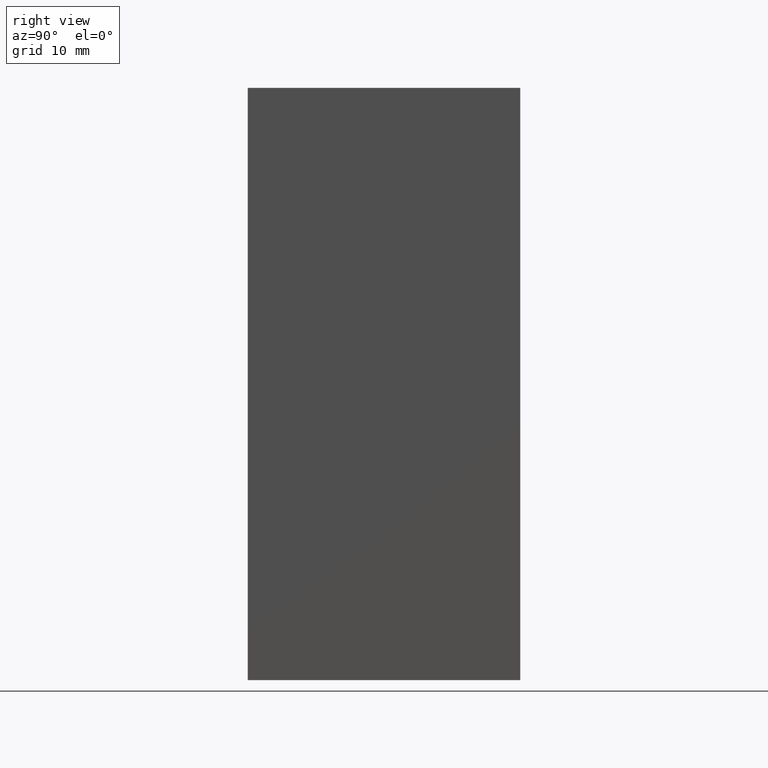
[diagram: clean part render]
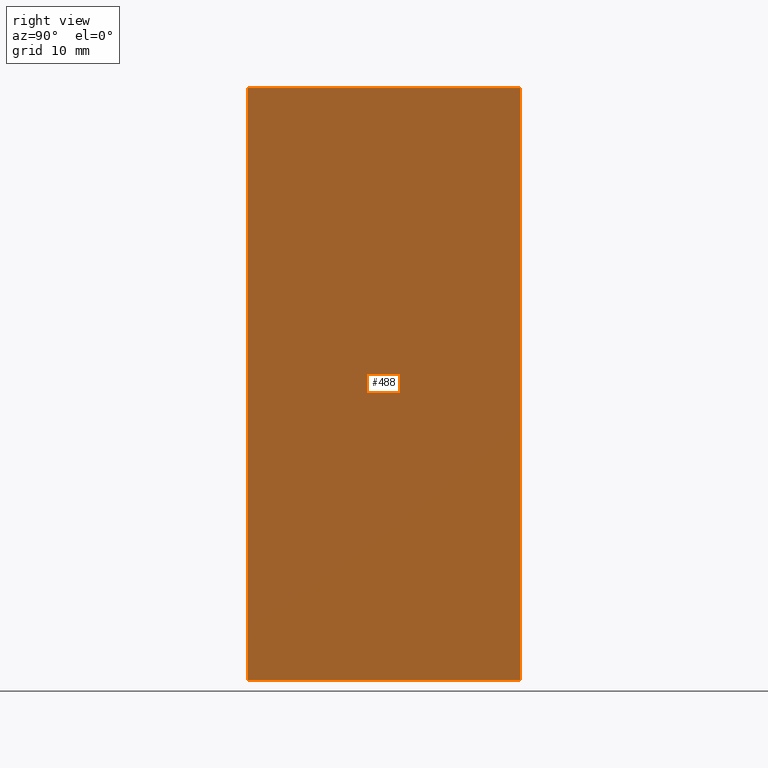
[diagram: same view with one face highlighted and labeled with its STEP entity id]
A machine part, right view. The second image highlights one B-rep face of the part: STEP entity #488.
In plain terms, the highlighted planar face has unit normal (1, 0, 0).
Its self-contained STEP definition (entity closure, byte-faithful):
#28=PLANE('',#551);
#56=FACE_OUTER_BOUND('',#88,.T.);
#88=EDGE_LOOP('',(#387,#388,#389,#390));
#116=LINE('',#750,#170);
#131=LINE('',#780,#185);
#132=LINE('',#782,#186);
#133=LINE('',#783,#187);
#170=VECTOR('',#623,10.);
#185=VECTOR('',#640,10.);
#186=VECTOR('',#641,10.);
#187=VECTOR('',#642,10.);
#242=VERTEX_POINT('',#747);
#243=VERTEX_POINT('',#749);
#257=VERTEX_POINT('',#779);
#258=VERTEX_POINT('',#781);
#292=EDGE_CURVE('',#242,#243,#116,.T.);
#307=EDGE_CURVE('',#257,#242,#131,.T.);
#308=EDGE_CURVE('',#258,#257,#132,.T.);
#309=EDGE_CURVE('',#243,#258,#133,.T.);
#387=ORIENTED_EDGE('',*,*,#307,.F.);
#388=ORIENTED_EDGE('',*,*,#308,.F.);
#389=ORIENTED_EDGE('',*,*,#309,.F.);
#390=ORIENTED_EDGE('',*,*,#292,.F.);
#488=ADVANCED_FACE('',(#56),#28,.T.);
#551=AXIS2_PLACEMENT_3D('',#778,#638,#639);
#623=DIRECTION('',(6.75787928032704E-16,-1.,0.));
#638=DIRECTION('center_axis',(1.,6.75787928032704E-16,0.));
#639=DIRECTION('ref_axis',(-6.75787928032704E-16,1.,0.));
#640=DIRECTION('',(0.,0.,-1.));
#641=DIRECTION('',(-6.75787928032704E-16,1.,0.));
#642=DIRECTION('',(0.,0.,1.));
#747=CARTESIAN_POINT('',(14.,23.,-25.));
#749=CARTESIAN_POINT('',(14.,4.44089209850063E-15,-25.));
#750=CARTESIAN_POINT('',(14.,4.44089209850063E-15,-25.));
#778=CARTESIAN_POINT('Origin',(14.,5.55111512312578E-15,0.));
#779=CARTESIAN_POINT('',(14.,23.,25.));
#780=CARTESIAN_POINT('',(14.,23.,0.));
#781=CARTESIAN_POINT('',(14.,4.44089209850063E-15,25.));
#782=CARTESIAN_POINT('',(14.,4.44089209850063E-15,25.));
#783=CARTESIAN_POINT('',(14.,5.55111512312578E-15,0.));